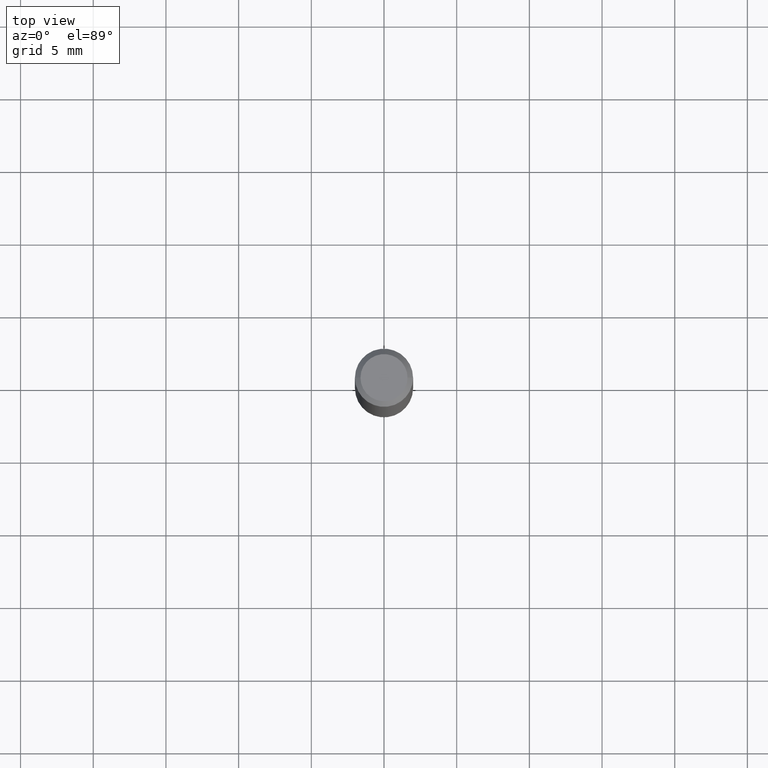
[diagram: clean part render]
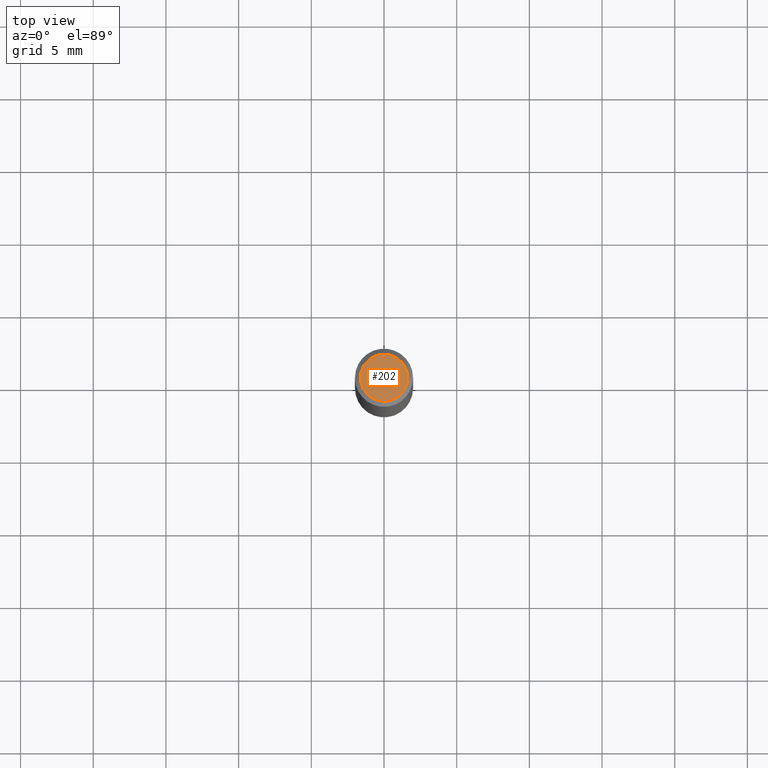
[diagram: same view with one face highlighted and labeled with its STEP entity id]
A machine part, top view. The second image highlights one B-rep face of the part: STEP entity #202.
In plain terms, the highlighted planar face has unit normal (0, -0, -1).
Its self-contained STEP definition (entity closure, byte-faithful):
#6 = CIRCLE ( 'NONE', #236, 0.06375000000000000111 ) ;
#19 = DIRECTION ( 'NONE',  ( 1.000000000000000000, -6.982962677686265922E-15, 4.947888571036530338E-29 ) ) ;
#27 = VERTEX_POINT ( 'NONE', #35 ) ;
#35 = CARTESIAN_POINT ( 'NONE',  ( -0.06375000000000000111, 4.713499807438214450E-16, -8.648154804784131215E-16 ) ) ;
#67 = ORIENTED_EDGE ( 'NONE', *, *, #136, .T. ) ;
#84 = PLANE ( 'NONE',  #253 ) ;
#90 = DIRECTION ( 'NONE',  ( 1.000000000000000000, -6.982962677686265922E-15, 4.947888571036530338E-29 ) ) ;
#127 = DIRECTION ( 'NONE',  ( -2.445468806185136597E-29, 3.491481338843145583E-15, 1.000000000000000000 ) ) ;
#131 = CARTESIAN_POINT ( 'NONE',  ( 0.06375000000000000111, -5.149965923825467057E-16, -8.648154804784066134E-16 ) ) ;
#136 = EDGE_CURVE ( 'NONE', #27, #277, #292, .T. ) ;
#145 = DIRECTION ( 'NONE',  ( -2.445468806185136597E-29, 3.491481338843145583E-15, 1.000000000000000000 ) ) ;
#191 = DIRECTION ( 'NONE',  ( -1.000000000000000000, 6.982962677686265922E-15, -4.876176775795935793E-29 ) ) ;
#202 = ADVANCED_FACE ( 'NONE', ( #336 ), #84, .F. ) ;
#230 = CARTESIAN_POINT ( 'NONE',  ( 4.451638707024993845E-16, 0.06375000000000000111, -6.549896755904555627E-16 ) ) ;
#236 = AXIS2_PLACEMENT_3D ( 'NONE', #460, #127, #90 ) ;
#253 = AXIS2_PLACEMENT_3D ( 'NONE', #230, #377, #191 ) ;
#265 = EDGE_LOOP ( 'NONE', ( #67, #270 ) ) ;
#270 = ORIENTED_EDGE ( 'NONE', *, *, #372, .T. ) ;
#277 = VERTEX_POINT ( 'NONE', #131 ) ;
#292 = CIRCLE ( 'NONE', #402, 0.06375000000000000111 ) ;
#336 = FACE_OUTER_BOUND ( 'NONE', #265, .T. ) ;
#340 = CARTESIAN_POINT ( 'NONE',  ( 2.114879280615962586E-44, -3.019487111633037230E-30, -8.648154804784100646E-16 ) ) ;
#372 = EDGE_CURVE ( 'NONE', #277, #27, #6, .T. ) ;
#377 = DIRECTION ( 'NONE',  ( 2.438088387897960049E-29, -3.491481338843145188E-15, -1.000000000000000000 ) ) ;
#402 = AXIS2_PLACEMENT_3D ( 'NONE', #340, #145, #19 ) ;
#460 = CARTESIAN_POINT ( 'NONE',  ( 2.114879280615962586E-44, -3.019487111633037230E-30, -8.648154804784100646E-16 ) ) ;